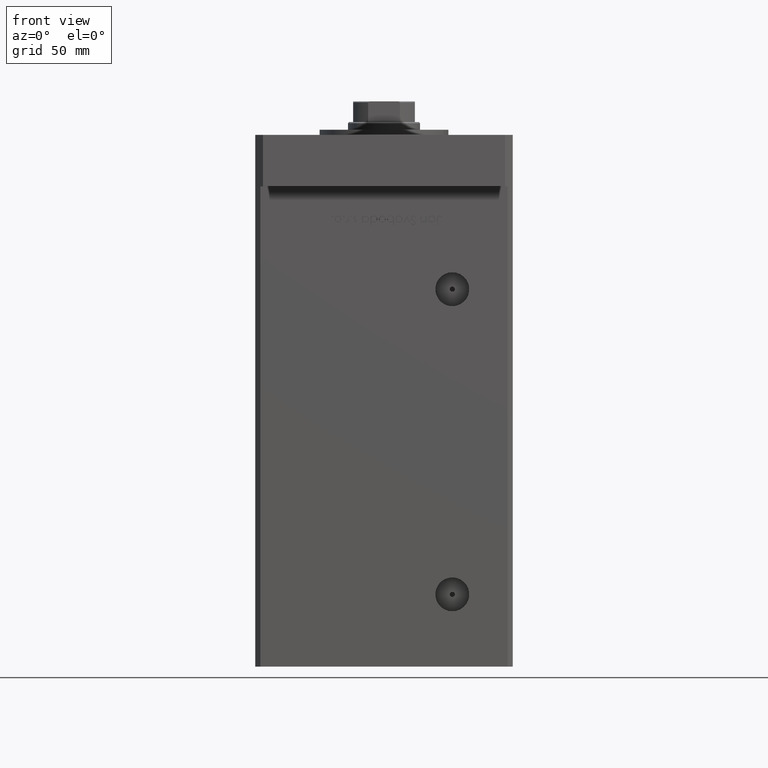
[diagram: clean part render]
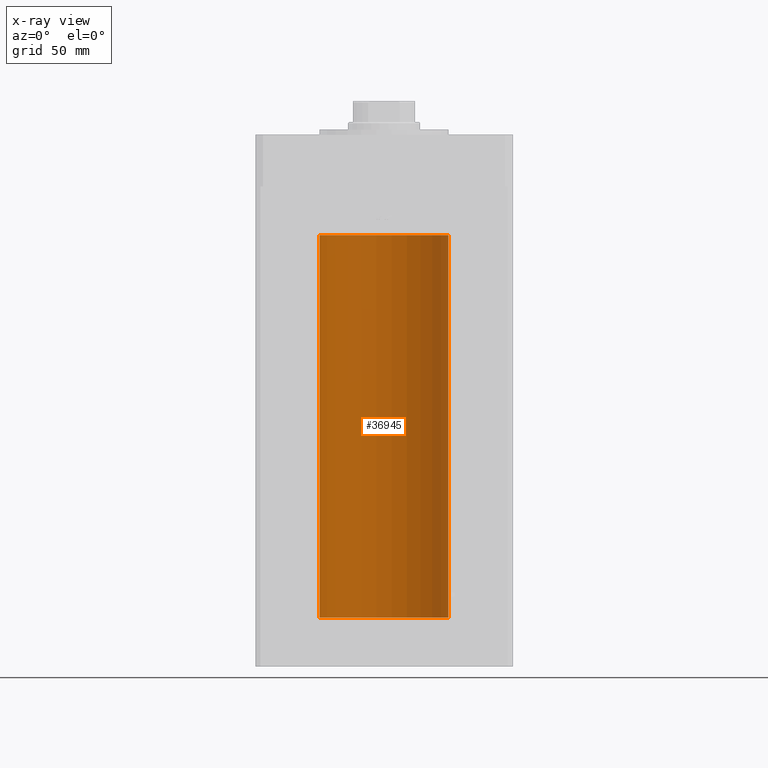
[diagram: x-ray — body ghosted, one internal face saturated and labeled with its STEP entity id]
A machine part, front view, then the same camera in x-ray: the body is ghosted and one INTERNAL B-rep face — a face not visible from any outside direction — is saturated and labeled: STEP entity #36945.
In plain terms, the highlighted cylindrical surface (partial cylindrical patch) has radius 25 mm, axis along (-0, -0, -1).
Its self-contained STEP definition (entity closure, byte-faithful):
#851 = AXIS2_PLACEMENT_3D ( 'NONE', #12438, #36422, #20640 ) ;
#2328 = EDGE_CURVE ( 'NONE', #26242, #8500, #46138, .T. ) ;
#4661 = CIRCLE ( 'NONE', #15134, 25.00000000000000000 ) ;
#5915 = CARTESIAN_POINT ( 'NONE',  ( 0.000000000000000000, 0.000000000000000000, 0.000000000000000000 ) ) ;
#8500 = VERTEX_POINT ( 'NONE', #24225 ) ;
#12438 = CARTESIAN_POINT ( 'NONE',  ( 0.000000000000000000, 0.000000000000000000, 148.5000000000000000 ) ) ;
#12766 = DIRECTION ( 'NONE',  ( -0.000000000000000000, -0.000000000000000000, -1.000000000000000000 ) ) ;
#15134 = AXIS2_PLACEMENT_3D ( 'NONE', #5915, #19277, #43813 ) ;
#15629 = EDGE_CURVE ( 'NONE', #8500, #51614, #4661, .T. ) ;
#16165 = DIRECTION ( 'NONE',  ( -0.000000000000000000, -0.000000000000000000, -1.000000000000000000 ) ) ;
#19112 = CIRCLE ( 'NONE', #851, 25.00000000000000000 ) ;
#19149 = AXIS2_PLACEMENT_3D ( 'NONE', #46841, #12766, #33473 ) ;
#19277 = DIRECTION ( 'NONE',  ( -0.000000000000000000, 0.000000000000000000, 1.000000000000000000 ) ) ;
#20183 = CARTESIAN_POINT ( 'NONE',  ( 25.00000000000000000, 3.061616997868383043E-15, 148.5000000000000000 ) ) ;
#20640 = DIRECTION ( 'NONE',  ( 1.000000000000000000, 0.000000000000000000, 0.000000000000000000 ) ) ;
#23834 = LINE ( 'NONE', #48654, #33067 ) ;
#24225 = CARTESIAN_POINT ( 'NONE',  ( 25.00000000000000000, 3.061616997868383043E-15, 0.000000000000000000 ) ) ;
#25037 = CYLINDRICAL_SURFACE ( 'NONE', #19149, 25.00000000000000000 ) ;
#26242 = VERTEX_POINT ( 'NONE', #20183 ) ;
#27533 = CARTESIAN_POINT ( 'NONE',  ( -25.00000000000000000, 0.000000000000000000, 148.5000000000000000 ) ) ;
#30029 = ORIENTED_EDGE ( 'NONE', *, *, #15629, .F. ) ;
#32105 = EDGE_LOOP ( 'NONE', ( #45145, #50708, #36739, #30029 ) ) ;
#33067 = VECTOR ( 'NONE', #41545, 1000.000000000000000 ) ;
#33473 = DIRECTION ( 'NONE',  ( -1.000000000000000000, 0.000000000000000000, 0.000000000000000000 ) ) ;
#35201 = EDGE_CURVE ( 'NONE', #26242, #43237, #19112, .T. ) ;
#36305 = EDGE_CURVE ( 'NONE', #43237, #51614, #23834, .T. ) ;
#36422 = DIRECTION ( 'NONE',  ( -0.000000000000000000, 0.000000000000000000, 1.000000000000000000 ) ) ;
#36739 = ORIENTED_EDGE ( 'NONE', *, *, #36305, .T. ) ;
#36877 = CARTESIAN_POINT ( 'NONE',  ( 25.00000000000000000, 3.061616997868383043E-15, 148.5000000000000000 ) ) ;
#36945 = ADVANCED_FACE ( 'NONE', ( #49320 ), #25037, .F. ) ;
#41545 = DIRECTION ( 'NONE',  ( -0.000000000000000000, -0.000000000000000000, -1.000000000000000000 ) ) ;
#43237 = VERTEX_POINT ( 'NONE', #27533 ) ;
#43813 = DIRECTION ( 'NONE',  ( 1.000000000000000000, 0.000000000000000000, 0.000000000000000000 ) ) ;
#45145 = ORIENTED_EDGE ( 'NONE', *, *, #2328, .F. ) ;
#46138 = LINE ( 'NONE', #36877, #46172 ) ;
#46172 = VECTOR ( 'NONE', #16165, 1000.000000000000000 ) ;
#46841 = CARTESIAN_POINT ( 'NONE',  ( 0.000000000000000000, 0.000000000000000000, 148.5000000000000000 ) ) ;
#47382 = CARTESIAN_POINT ( 'NONE',  ( -25.00000000000000000, 0.000000000000000000, 0.000000000000000000 ) ) ;
#48654 = CARTESIAN_POINT ( 'NONE',  ( -25.00000000000000000, 0.000000000000000000, 148.5000000000000000 ) ) ;
#49320 = FACE_OUTER_BOUND ( 'NONE', #32105, .T. ) ;
#50708 = ORIENTED_EDGE ( 'NONE', *, *, #35201, .T. ) ;
#51614 = VERTEX_POINT ( 'NONE', #47382 ) ;